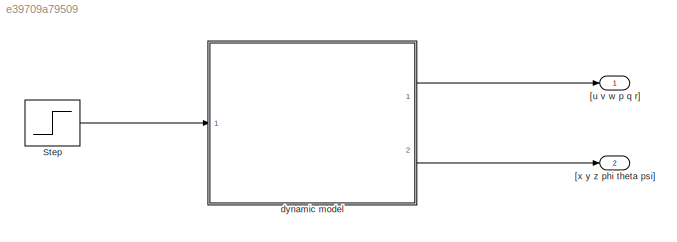
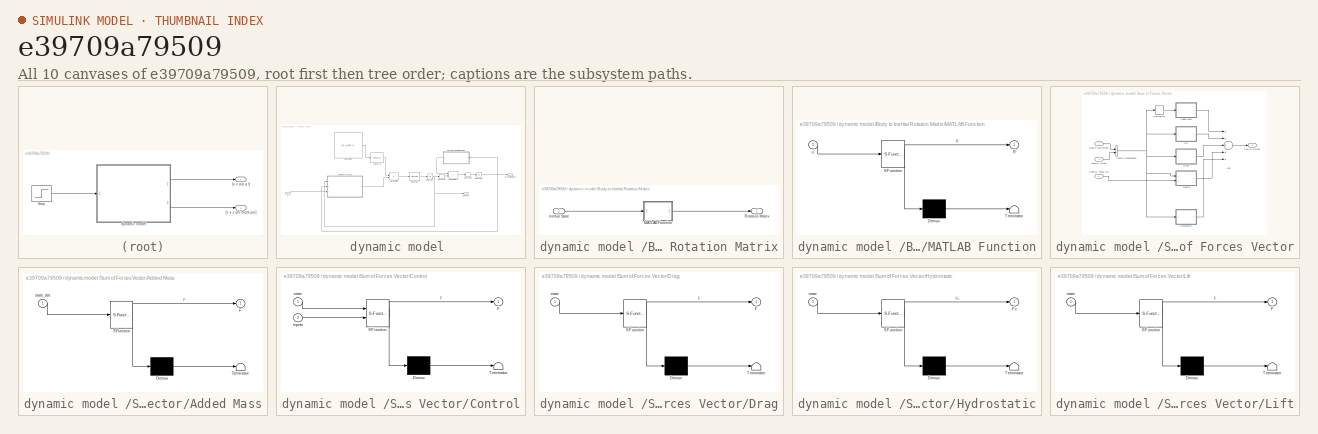
[diagram: thumbnail index - all 10 canvases of the model, root first then tree order]
MODEL slx_e39709a79509
KIND model
CONFIG AbsTol = auto
CONFIG EnableMultiTasking = off
CONFIG FixedStep = 0.001
CONFIG MaxStep = auto
CONFIG MinStep = auto
CONFIG RelTol = 1e-3
CONFIG SampleTimeConstraint = Unconstrained
CONFIG Solver = FixedStepAuto
CONFIG SolverName = FixedStepAuto
CONFIG StartTime = 0.0
CONFIG StopTime = 10.0
BLOCK [Step] Step
  After = 1*[1 1 1 1]
  Before = [0 0 0 0]
  SampleTime = 0
  Time = 0
BLOCK [Outport] [u v w p q r]
  IconDisplay = Port number
BLOCK [Outport] [x y z phi theta psi]
  IconDisplay = Port number
  Port = 2
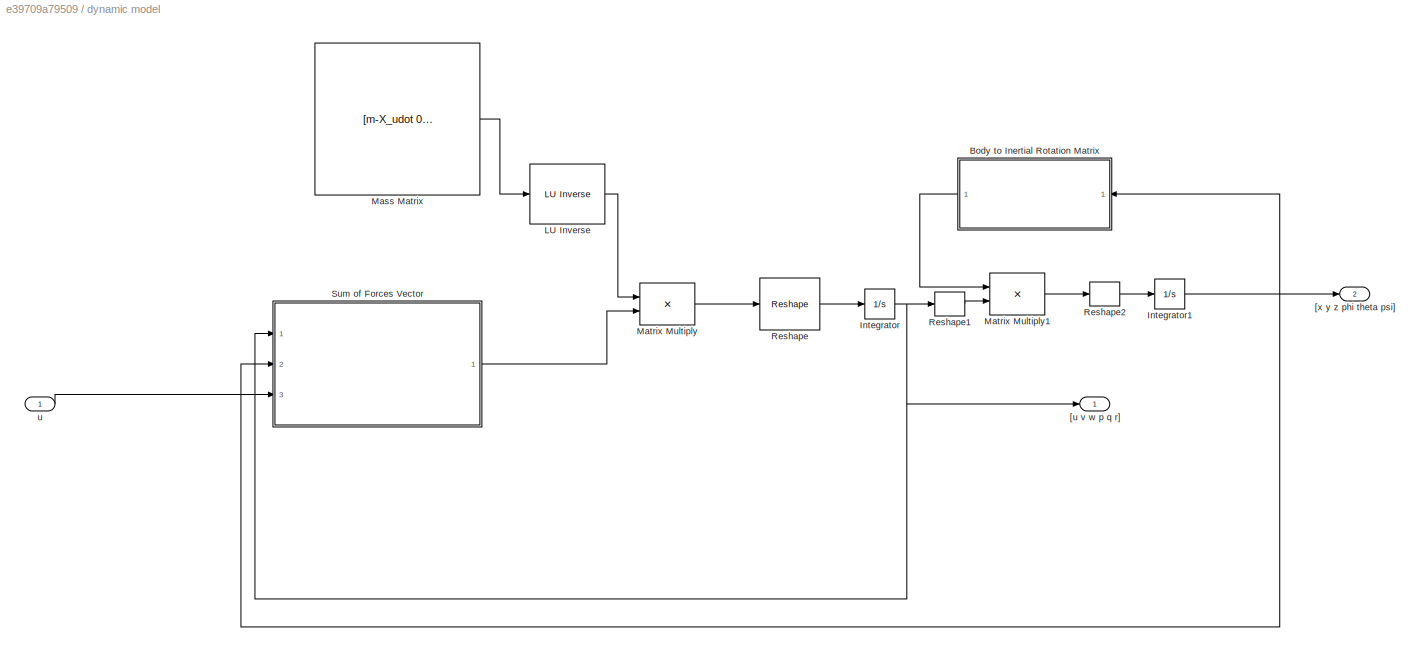
BLOCK [SubSystem] dynamic model 
  Ports = [1, 2]
  RequestExecContextInheritance = off
  Variant = off
BLOCK [Reference] dynamic model / LU Inverse  REF=dspinverses/ LU Inverse
  Ports = [1, 1]
  SourceBlock = dspinverses/ LU Inverse
  SourceType = LU Inverse
BLOCK [SubSystem] dynamic model /Body to Inertial Rotation Matrix
  Ports = [1, 1]
  RequestExecContextInheritance = off
  Variant = off
BLOCK [Inport] dynamic model /Body to Inertial Rotation Matrix/Inertial State
  IconDisplay = Port number
  VarSizeSig = No
BLOCK [SubSystem] dynamic model /Body to Inertial Rotation Matrix/MATLAB Function
  ErrorFcn = Stateflow.Translate.translate
  PermitHierarchicalResolution = ExplicitOnly
  Ports = [1, 1]
  RequestExecContextInheritance = off
  SFBlockType = MATLAB Function
  TreatAsAtomicUnit = on
  Variant = off
BLOCK [Demux] dynamic model /Body to Inertial Rotation Matrix/MATLAB Function/ Demux 
  Outputs = 1
  Ports = [1, 1]
BLOCK [S-Function] dynamic model /Body to Inertial Rotation Matrix/MATLAB Function/ SFunction 
  EnableBusSupport = on
  FunctionName = sf_sfun
  PortCounts = [1 2]
  Ports = [1, 2]
  SFcnIsStateOwnerBlock = off
  SFunctionDeploymentMode = off
  Tag = Stateflow S-Function beluga_control 2
BLOCK [Terminator] dynamic model /Body to Inertial Rotation Matrix/MATLAB Function/ Terminator 
BLOCK [Outport] dynamic model /Body to Inertial Rotation Matrix/MATLAB Function/R
  IconDisplay = Port number
BLOCK [Inport] dynamic model /Body to Inertial Rotation Matrix/MATLAB Function/u
  IconDisplay = Port number
BLOCK [Outport] dynamic model /Body to Inertial Rotation Matrix/Rotation Matrix
  IconDisplay = Port number
  PortDimensions = [6,6]
BLOCK [Integrator] dynamic model /Integrator
  InitialCondition = [0 0 0 0 0 0]'
  Ports = [1, 1]
BLOCK [Integrator] dynamic model /Integrator1
  InitialCondition = [0 0 0 0 0 0]'
  Ports = [1, 1]
BLOCK [Constant] dynamic model /Mass Matrix 
  Value = [m-X_udot 0 0 0 m*zg 0; 0 m-Y_vdot 0 -m*zg 0 m*xg-Y_rdot; 0 0 m-Z_wdot 0 -m*xg-Z_qdot 0; 0 -m*zg 0 Ix-K_pdot 0 0; m*zg 0 -m*xg-M_wdot 0 Iy-M_qdot 0; 0 m*xg-N_vdot 0 0 0 Iz-N_rdot]
  VectorParams1D = off
BLOCK [Product] dynamic model /Matrix Multiply
  InputSameDT = off
  Multiplication = Matrix(*)
  OutDataTypeStr = Inherit: Inherit via internal rule
  Ports = [2, 1]
  RndMeth = Floor
  SaturateOnIntegerOverflow = off
BLOCK [Product] dynamic model /Matrix Multiply1
  InputSameDT = off
  Multiplication = Matrix(*)
  OutDataTypeStr = Inherit: Inherit via internal rule
  Ports = [2, 1]
  RndMeth = Floor
  SaturateOnIntegerOverflow = off
BLOCK [Reshape] dynamic model /Reshape
  OutputDimensions = 3
  Ports = [1, 1]
BLOCK [Reshape] dynamic model /Reshape1
  OutputDimensions = [1,6]
  Ports = [1, 1]
BLOCK [Reshape] dynamic model /Reshape2
  OutputDimensions = [6,1]
  Ports = [1, 1]
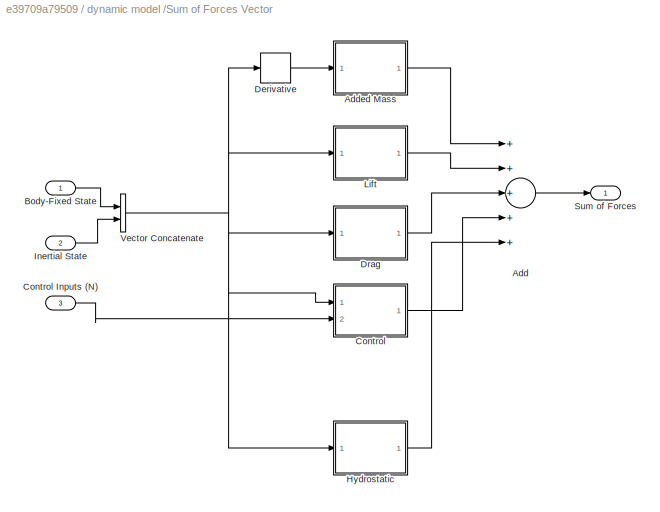
BLOCK [SubSystem] dynamic model /Sum of Forces Vector
  Ports = [3, 1]
  RequestExecContextInheritance = off
  Variant = off
BLOCK [Sum] dynamic model /Sum of Forces Vector/Add
  InputSameDT = off
  Inputs = +++++
  OutDataTypeStr = Inherit: Inherit via internal rule
  Ports = [5, 1]
  SaturateOnIntegerOverflow = off
BLOCK [SubSystem] dynamic model /Sum of Forces Vector/Added Mass
  ErrorFcn = Stateflow.Translate.translate
  PermitHierarchicalResolution = ExplicitOnly
  Ports = [1, 1]
  RequestExecContextInheritance = off
  SFBlockType = MATLAB Function
  TreatAsAtomicUnit = on
  Variant = off
BLOCK [Demux] dynamic model /Sum of Forces Vector/Added Mass/ Demux 
  Outputs = 1
  Ports = [1, 1]
BLOCK [S-Function] dynamic model /Sum of Forces Vector/Added Mass/ SFunction 
  EnableBusSupport = on
  FunctionName = sf_sfun
  PortCounts = [1 2]
  Ports = [1, 2]
  SFcnIsStateOwnerBlock = off
  SFunctionDeploymentMode = off
  Tag = Stateflow S-Function beluga_control 6
BLOCK [Terminator] dynamic model /Sum of Forces Vector/Added Mass/ Terminator 
BLOCK [Outport] dynamic model /Sum of Forces Vector/Added Mass/F
  IconDisplay = Port number
BLOCK [Inport] dynamic model /Sum of Forces Vector/Added Mass/state_dot
  IconDisplay = Port number
BLOCK [Inport] dynamic model /Sum of Forces Vector/Body-Fixed State
  IconDisplay = Port number
BLOCK [SubSystem] dynamic model /Sum of Forces Vector/Control
  ErrorFcn = Stateflow.Translate.translate
  PermitHierarchicalResolution = ExplicitOnly
  Ports = [2, 1]
  RequestExecContextInheritance = off
  SFBlockType = MATLAB Function
  TreatAsAtomicUnit = on
  Variant = off
BLOCK [Inport] dynamic model /Sum of Forces Vector/Control Inputs (N)
  IconDisplay = Port number
  Port = 3
BLOCK [Demux] dynamic model /Sum of Forces Vector/Control/ Demux 
  Outputs = 1
  Ports = [1, 1]
BLOCK [S-Function] dynamic model /Sum of Forces Vector/Control/ SFunction 
  EnableBusSupport = on
  FunctionName = sf_sfun
  PortCounts = [2 2]
  Ports = [2, 2]
  SFcnIsStateOwnerBlock = off
  SFunctionDeploymentMode = off
  Tag = Stateflow S-Function beluga_control 1
BLOCK [Terminator] dynamic model /Sum of Forces Vector/Control/ Terminator 
BLOCK [Outport] dynamic model /Sum of Forces Vector/Control/F
  IconDisplay = Port number
BLOCK [Inport] dynamic model /Sum of Forces Vector/Control/inputs
  IconDisplay = Port number
  Port = 2
BLOCK [Inport] dynamic model /Sum of Forces Vector/Control/state
  IconDisplay = Port number
BLOCK [Derivative] dynamic model /Sum of Forces Vector/Derivative
BLOCK [SubSystem] dynamic model /Sum of Forces Vector/Drag
  ErrorFcn = Stateflow.Translate.translate
  PermitHierarchicalResolution = ExplicitOnly
  Ports = [1, 1]
  RequestExecContextInheritance = off
  SFBlockType = MATLAB Function
  TreatAsAtomicUnit = on
  Variant = off
BLOCK [Demux] dynamic model /Sum of Forces Vector/Drag/ Demux 
  Outputs = 1
  Ports = [1, 1]
BLOCK [S-Function] dynamic model /Sum of Forces Vector/Drag/ SFunction 
  EnableBusSupport = on
  FunctionName = sf_sfun
  PortCounts = [1 2]
  Ports = [1, 2]
  SFcnIsStateOwnerBlock = off
  SFunctionDeploymentMode = off
  Tag = Stateflow S-Function beluga_control 4
BLOCK [Terminator] dynamic model /Sum of Forces Vector/Drag/ Terminator 
BLOCK [Outport] dynamic model /Sum of Forces Vector/Drag/F
  IconDisplay = Port number
BLOCK [Inport] dynamic model /Sum of Forces Vector/Drag/state
  IconDisplay = Port number
BLOCK [SubSystem] dynamic model /Sum of Forces Vector/Hydrostatic
  ErrorFcn = Stateflow.Translate.translate
  PermitHierarchicalResolution = ExplicitOnly
  Ports = [1, 1]
  RequestExecContextInheritance = off
  SFBlockType = MATLAB Function
  TreatAsAtomicUnit = on
  Variant = off
BLOCK [Demux] dynamic model /Sum of Forces Vector/Hydrostatic/ Demux 
  Outputs = 1
  Ports = [1, 1]
BLOCK [S-Function] dynamic model /Sum of Forces Vector/Hydrostatic/ SFunction 
  EnableBusSupport = on
  FunctionName = sf_sfun
  PortCounts = [1 2]
  Ports = [1, 2]
  SFcnIsStateOwnerBlock = off
  SFunctionDeploymentMode = off
  Tag = Stateflow S-Function beluga_control 3
BLOCK [Terminator] dynamic model /Sum of Forces Vector/Hydrostatic/ Terminator 
BLOCK [Outport] dynamic model /Sum of Forces Vector/Hydrostatic/Fc
  IconDisplay = Port number
BLOCK [Inport] dynamic model /Sum of Forces Vector/Hydrostatic/state
  IconDisplay = Port number
BLOCK [Inport] dynamic model /Sum of Forces Vector/Inertial State
  IconDisplay = Port number
  Port = 2
BLOCK [SubSystem] dynamic model /Sum of Forces Vector/Lift
  ErrorFcn = Stateflow.Translate.translate
  PermitHierarchicalResolution = ExplicitOnly
  Ports = [1, 1]
  RequestExecContextInheritance = off
  SFBlockType = MATLAB Function
  TreatAsAtomicUnit = on
  Variant = off
BLOCK [Demux] dynamic model /Sum of Forces Vector/Lift/ Demux 
  Outputs = 1
  Ports = [1, 1]
BLOCK [S-Function] dynamic model /Sum of Forces Vector/Lift/ SFunction 
  EnableBusSupport = on
  FunctionName = sf_sfun
  PortCounts = [1 2]
  Ports = [1, 2]
  SFcnIsStateOwnerBlock = off
  SFunctionDeploymentMode = off
  Tag = Stateflow S-Function beluga_control 5
BLOCK [Terminator] dynamic model /Sum of Forces Vector/Lift/ Terminator 
BLOCK [Outport] dynamic model /Sum of Forces Vector/Lift/F
  IconDisplay = Port number
BLOCK [Inport] dynamic model /Sum of Forces Vector/Lift/state
  IconDisplay = Port number
BLOCK [Outport] dynamic model /Sum of Forces Vector/Sum of Forces
  IconDisplay = Port number
BLOCK [Concatenate] dynamic model /Sum of Forces Vector/Vector Concatenate
  Ports = [2, 1]
BLOCK [Outport] dynamic model /[u v w p q r]
  IconDisplay = Port number
BLOCK [Outport] dynamic model /[x y z phi theta psi]
  IconDisplay = Port number
  Port = 2
BLOCK [Inport] dynamic model /u
  IconDisplay = Port number
  PortDimensions = [4,1]
LINE Step:1 -> dynamic model :1
LINE dynamic model / LU Inverse:1 -> dynamic model /Matrix Multiply:1
LINE dynamic model /Body to Inertial Rotation Matrix/Inertial State:1 -> dynamic model /Body to Inertial Rotation Matrix/MATLAB Function:1
LINE dynamic model /Body to Inertial Rotation Matrix/MATLAB Function:1 -> dynamic model /Body to Inertial Rotation Matrix/Rotation Matrix:1
LINE dynamic model /Body to Inertial Rotation Matrix:1 -> dynamic model /Matrix Multiply1:1
NET dynamic model /Integrator1:1 -> dynamic model /Body to Inertial Rotation Matrix:1, dynamic model /Sum of Forces Vector:2, dynamic model /[x y z phi theta psi]:1
NET dynamic model /Integrator:1 -> dynamic model /Reshape1:1, dynamic model /Sum of Forces Vector:1, dynamic model /[u v w p q r]:1
LINE dynamic model /Mass Matrix :1 -> dynamic model / LU Inverse:1
LINE dynamic model /Matrix Multiply1:1 -> dynamic model /Reshape2:1
LINE dynamic model /Matrix Multiply:1 -> dynamic model /Reshape:1
LINE dynamic model /Reshape1:1 -> dynamic model /Matrix Multiply1:2
LINE dynamic model /Reshape2:1 -> dynamic model /Integrator1:1
LINE dynamic model /Reshape:1 -> dynamic model /Integrator:1
LINE dynamic model /Sum of Forces Vector/Add:1 -> dynamic model /Sum of Forces Vector/Sum of Forces:1
LINE dynamic model /Sum of Forces Vector/Added Mass:1 -> dynamic model /Sum of Forces Vector/Add:1
LINE dynamic model /Sum of Forces Vector/Body-Fixed State:1 -> dynamic model /Sum of Forces Vector/Vector Concatenate:1
LINE dynamic model /Sum of Forces Vector/Control Inputs (N):1 -> dynamic model /Sum of Forces Vector/Control:2
LINE dynamic model /Sum of Forces Vector/Control:1 -> dynamic model /Sum of Forces Vector/Add:4
LINE dynamic model /Sum of Forces Vector/Derivative:1 -> dynamic model /Sum of Forces Vector/Added Mass:1
LINE dynamic model /Sum of Forces Vector/Drag:1 -> dynamic model /Sum of Forces Vector/Add:3
LINE dynamic model /Sum of Forces Vector/Hydrostatic:1 -> dynamic model /Sum of Forces Vector/Add:5
LINE dynamic model /Sum of Forces Vector/Inertial State:1 -> dynamic model /Sum of Forces Vector/Vector Concatenate:2
LINE dynamic model /Sum of Forces Vector/Lift:1 -> dynamic model /Sum of Forces Vector/Add:2
NET dynamic model /Sum of Forces Vector/Vector Concatenate:1 -> dynamic model /Sum of Forces Vector/Control:1, dynamic model /Sum of Forces Vector/Derivative:1, dynamic model /Sum of Forces Vector/Drag:1, dynamic model /Sum of Forces Vector/Hydrostatic:1, dynamic model /Sum of Forces Vector/Lift:1
LINE dynamic model /Sum of Forces Vector:1 -> dynamic model /Matrix Multiply:2
LINE dynamic model /u:1 -> dynamic model /Sum of Forces Vector:3
LINE dynamic model :1 -> [u v w p q r]:1
LINE dynamic model :2 -> [x y z phi theta psi]:1
note: NET lines group one-source signal fan-out (src -> all destinations, sorted); 1:1 wires keep LINE
CHART dynamic model
/Sum of Forces Vector/Control states=1 transitions=1
  STATE_LABEL 'eML_blk_kernel()'
  STATE_LABEL 'SCRIPT:\nfunction F = fcn(state, inputs)\n    \n    %% Constants TODO\n    \n    %% Thruster Model\n    % Values from documentation stationary calibration\n    thruster_pwm = [1100        1110        1120        1130        1140        1150        1160        1170 1180        1190        1200        1210        1220        1230        1240        1250        1260        1270        1280        1290      ...<+3057ch>'
CHART dynamic model
/Body to Inertial Rotation Matrix/MATLAB Function states=1 transitions=1
  STATE_LABEL 'eML_blk_kernel()'
  STATE_LABEL 'SCRIPT:\nfunction R = fcn(u)\n    % Inputs\n    x = u(1);\n    y = u(2);\n    z = u(3);\n    phi = u(4);\n    theta = u(5);\n    psi = u(6);\n    \n    % transformation\n    cosphi = cos(phi);\n    sinphi = sin(phi);\n    costheta = cos(theta);\n    sintheta = sin(theta);\n    cospsi = cos(psi);\n    sinpsi = sin(psi);\n\n    R = zeros(6,6);\n    R(1,1) = cospsi.*cosphi-costheta.*sinphi.*sinpsi;\n    R(1,2) = sinphi....<+351ch>'
CHART dynamic model
/Sum of Forces Vector/Hydrostatic states=1 transitions=1
  STATE_LABEL 'eML_blk_kernel()'
  STATE_LABEL 'SCRIPT:\nfunction Fc = fcn(state)\n    \n    %% Constants\n    %Conversion Factors:\n    i2m = 0.0254; %Conversion factor (inches to meters)\n    lb2N = 4.44822162; %Conversion factor (lbs-force to Newtons)\n\n    %***************************************\n    %Measured Parameters:\n    W = 41.33*lb2N;\n    B = W; %41.77*lb2N; TODO return to normal\n    %Measured or Estimated Centers of Buoyancy and Gravity\n  ...<+779ch>'
CHART dynamic model
/Sum of Forces Vector/Drag states=1 transitions=1
  STATE_LABEL 'eML_blk_kernel()'
  STATE_LABEL "SCRIPT:\nfunction F = fcn(state)\n    \n    %% Constants\n    %disp('Calc Nonlinear Coeffs')\n    %Conversion Factors:\n    i2m = 0.0254; %Conversion factor (inches to meters)\n    lb2N = 4.44822162; %Conversion factor (lbs-force to Newtons)\n    %Water Characteristics:\n    %U = 1.5; %nominal velocity (m/s)\n    U = 1; %2 knots\n    rho = 1.03*10^(3); %seawater density (kg/m^3)\n    %****Iver2 Hull Parameter...<+3608ch>"
CHART dynamic model
/Sum of Forces Vector/Lift states=1 transitions=1
  STATE_LABEL 'eML_blk_kernel()'
  STATE_LABEL "SCRIPT:\nfunction F = fcn(state)\n    \n    %% Constants\n    %disp('Calc Nonlinear Coeffs')\n    %Conversion Factors:\n    i2m = 0.0254; %Conversion factor (inches to meters)\n    lb2N = 4.44822162; %Conversion factor (lbs-force to Newtons)\n    %Water Characteristics:\n    %U = 1.5; %nominal velocity (m/s)\n    U = 1; %2 knots\n    rho = 1.03*10^(3); %seawater density (kg/m^3)\n    %****Iver2 Hull Parameter...<+3608ch>"
CHART dynamic model
/Sum of Forces Vector/Added Mass states=1 transitions=1
  STATE_LABEL 'eML_blk_kernel()'
  STATE_LABEL "SCRIPT:\nfunction F = fcn(state_dot)\n    \n    %% Constants\n    %disp('Calc Nonlinear Coeffs')\n    %Conversion Factors:\n    i2m = 0.0254; %Conversion factor (inches to meters)\n    lb2N = 4.44822162; %Conversion factor (lbs-force to Newtons)\n    %Water Characteristics:\n    %U = 1.5; %nominal velocity (m/s)\n    U = 1; %2 knots\n    rho = 1.03*10^(3); %seawater density (kg/m^3)\n    %****Iver2 Hull Param...<+3608ch>"
